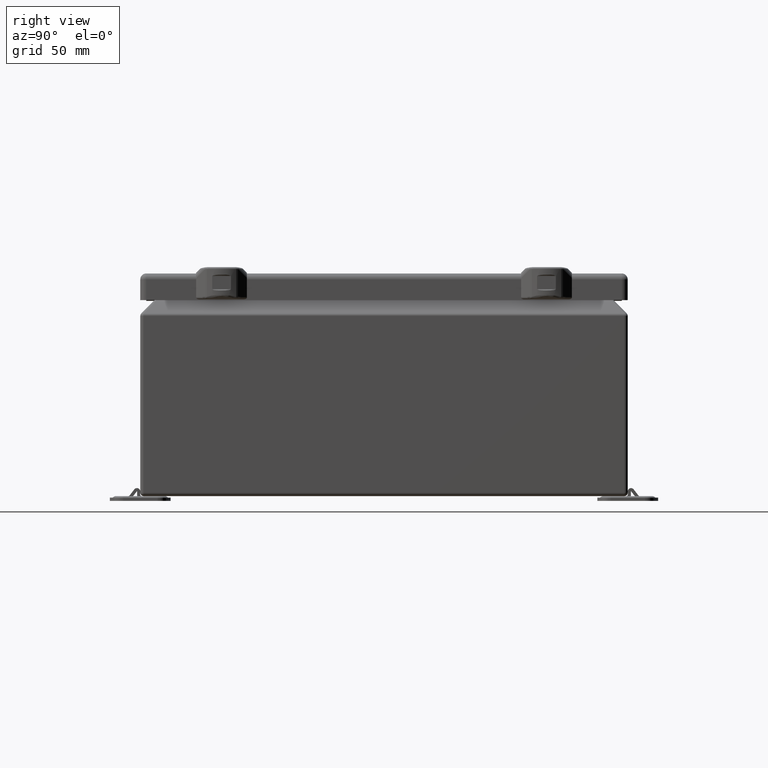
[diagram: clean part render]
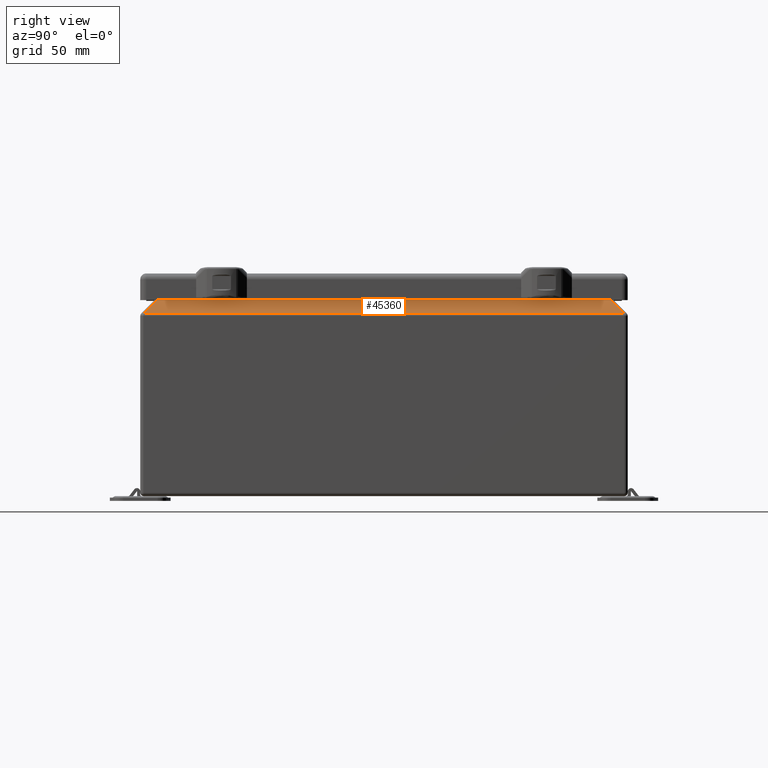
[diagram: same view with one face highlighted and labeled with its STEP entity id]
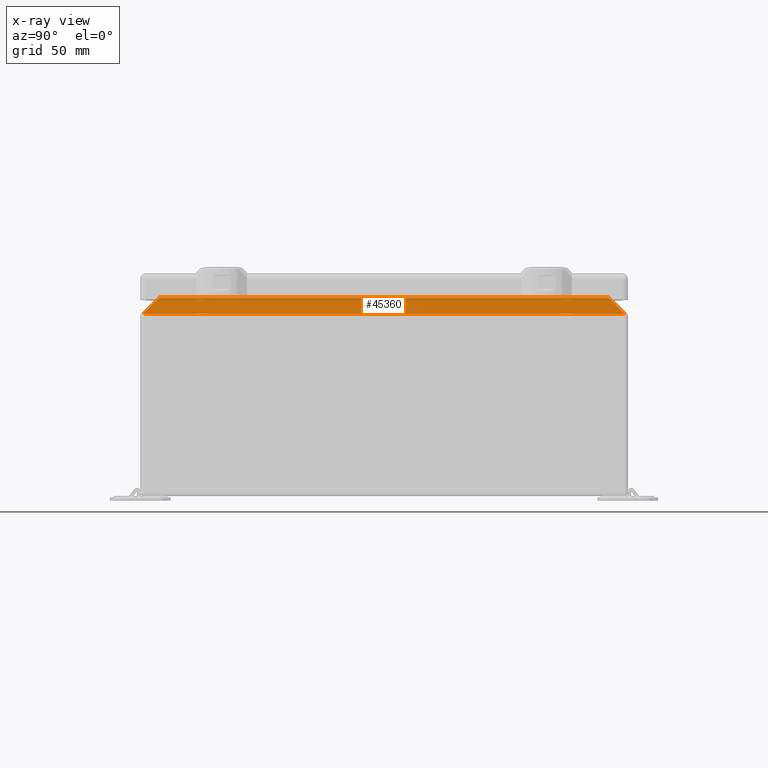
[diagram: x-ray of the same camera — body ghosted, the highlighted face saturated]
A machine part, right view. The second image highlights one B-rep face of the part: STEP entity #45360.
The next image is the same camera in x-ray: the body ghosted, the highlighted face saturated — about 0% of this face is hidden behind the body in this view.
In plain terms, the highlighted planar face has unit normal (0.7071, 0, 0.7071).
Its self-contained STEP definition (entity closure, byte-faithful):
#3061=PLANE('',#48891);
#4260=FACE_OUTER_BOUND('',#7053,.T.);
#7053=EDGE_LOOP('',(#31164,#31165,#31166,#31167));
#10060=LINE('',#65770,#13918);
#10064=LINE('',#65869,#13922);
#10068=LINE('',#65949,#13926);
#10069=LINE('',#65952,#13927);
#13918=VECTOR('',#53394,0.393700787401575);
#13922=VECTOR('',#53424,0.393700787401575);
#13926=VECTOR('',#53434,0.393700787401575);
#13927=VECTOR('',#53439,0.393700787401575);
#19414=VERTEX_POINT('',#65767);
#19415=VERTEX_POINT('',#65769);
#19424=VERTEX_POINT('',#65862);
#19428=VERTEX_POINT('',#65948);
#23874=EDGE_CURVE('',#19414,#19415,#10060,.T.);
#23891=EDGE_CURVE('',#19415,#19424,#10064,.T.);
#23899=EDGE_CURVE('',#19424,#19428,#10068,.T.);
#23901=EDGE_CURVE('',#19428,#19414,#10069,.T.);
#31164=ORIENTED_EDGE('',*,*,#23891,.F.);
#31165=ORIENTED_EDGE('',*,*,#23874,.F.);
#31166=ORIENTED_EDGE('',*,*,#23901,.F.);
#31167=ORIENTED_EDGE('',*,*,#23899,.F.);
#45360=ADVANCED_FACE('',(#4260),#3061,.T.);
#48891=AXIS2_PLACEMENT_3D('',#65951,#53437,#53438);
#53394=DIRECTION('',(-0.577350269189626,0.577350269189625,0.577350269189626));
#53424=DIRECTION('',(5.15914321422501E-17,1.,-1.69478585170531E-16));
#53434=DIRECTION('',(0.577350269189626,0.577350269189626,-0.577350269189626));
#53437=DIRECTION('center_axis',(0.707106781186547,8.33588053210735E-17,
0.707106781186548));
#53438=DIRECTION('ref_axis',(0.707106781186548,3.45283477072072E-17,-0.707106781186547));
#53439=DIRECTION('',(1.66859848653694E-32,-1.,1.17887153028281E-16));
#65767=CARTESIAN_POINT('',(4.97539696961967,-5.916,4.49655202338019));
#65769=CARTESIAN_POINT('',(4.57559439510586,-5.51619742548633,4.896354597894));
#65770=CARTESIAN_POINT('',(3.48519294768742,-4.42579597806789,5.98675604531244));
#65862=CARTESIAN_POINT('',(4.57559439510586,5.51619742548633,4.896354597894));
#65869=CARTESIAN_POINT('',(4.57559439510586,-1.72845631001762E-16,4.896354597894));
#65948=CARTESIAN_POINT('',(4.97539696961967,5.916,4.49655202338019));
#65949=CARTESIAN_POINT('',(3.48519294768742,4.42579597806789,5.98675604531244));
#65951=CARTESIAN_POINT('Origin',(6.12390801648698,-3.84198517480357E-16,
3.34804097651288));
#65952=CARTESIAN_POINT('',(4.97539696961967,-2.74194039702956E-17,4.49655202338019));